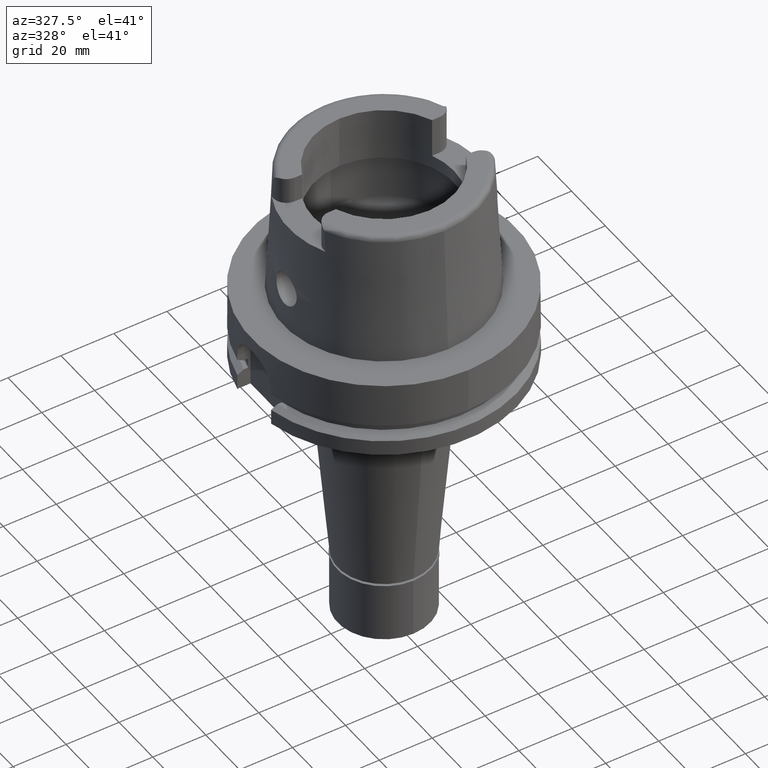
[diagram: clean part render]
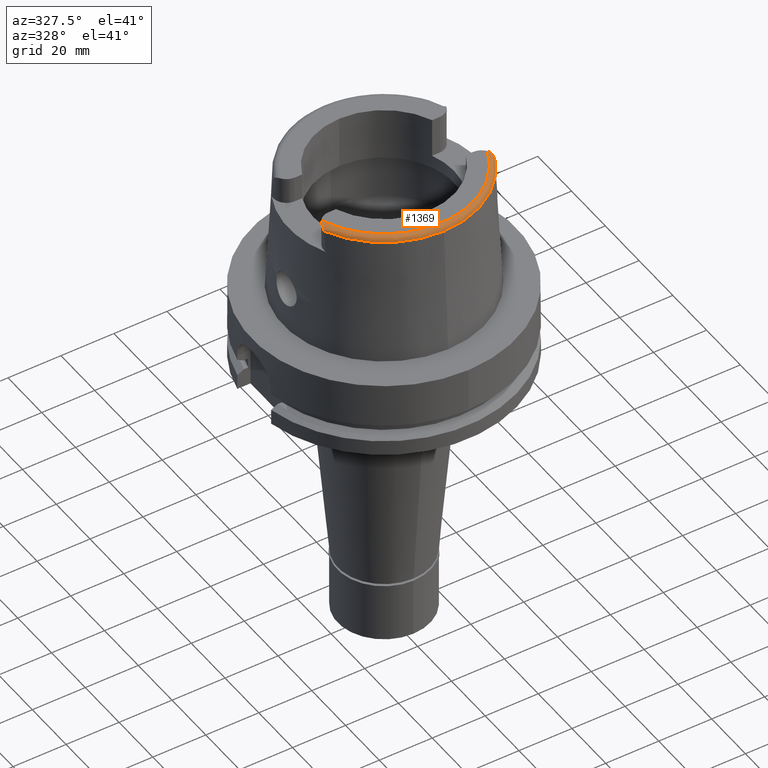
[diagram: same view with one face highlighted and labeled with its STEP entity id]
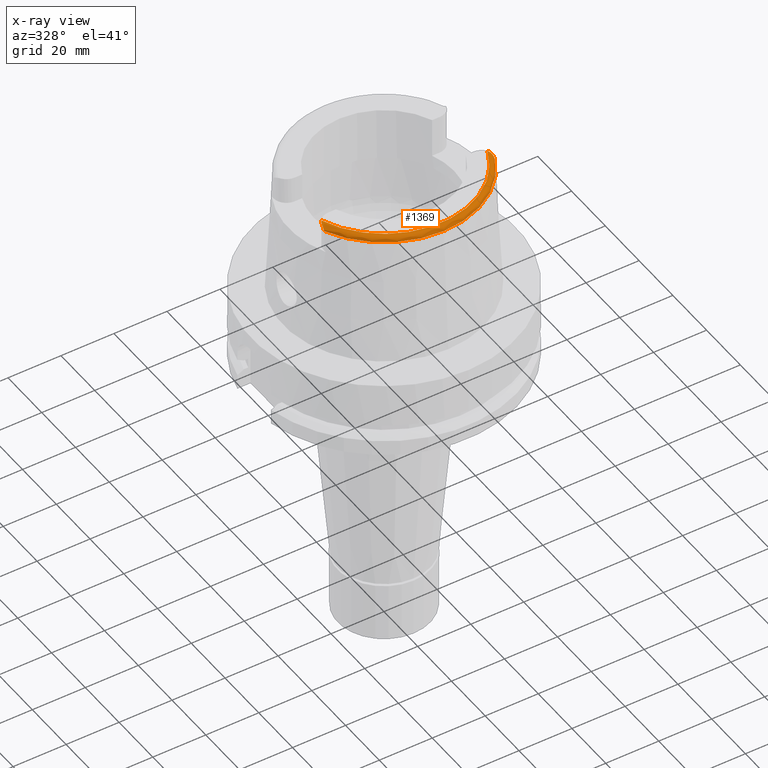
[diagram: x-ray of the same camera — body ghosted, the highlighted face saturated]
A machine part, auxiliary view. The second image highlights one B-rep face of the part: STEP entity #1369.
The next image is the same camera in x-ray: the body ghosted, the highlighted face saturated — about 0% of this face is hidden behind the body in this view.
In plain terms, the highlighted toroidal blend (fillet) surface has major radius 33.5974 mm and minor (blend) radius 2 mm.
Its self-contained STEP definition (entity closure, byte-faithful):
#10 = CARTESIAN_POINT ( 'NONE',  ( 32.16973544114853212, -14.00083717796830207, 49.34181413801352534 ) ) ;
#15 = CARTESIAN_POINT ( 'NONE',  ( -32.25000000000000711, -14.83666364120427694, 48.62478453769007558 ) ) ;
#58 = VERTEX_POINT ( 'NONE', #1162 ) ;
#239 = EDGE_CURVE ( 'NONE', #5182, #1158, #3383, .T. ) ;
#243 = CARTESIAN_POINT ( 'NONE',  ( 31.68115790808501231, -12.58091601286417927, 49.95520566156481834 ) ) ;
#268 = CARTESIAN_POINT ( 'NONE',  ( 31.98608483690798465, -13.30680085940336710, 49.70456204914859200 ) ) ;
#348 = CARTESIAN_POINT ( 'NONE',  ( -32.01566784162267965, -13.39583580472297797, 49.66518408760291692 ) ) ;
#374 = CARTESIAN_POINT ( 'NONE',  ( -32.03284760170905798, -13.44961124604714620, 49.64065071231775761 ) ) ;
#405 = CARTESIAN_POINT ( 'NONE',  ( -32.07039259755143235, -13.57457271587090730, 49.58094718502850640 ) ) ;
#433 = CARTESIAN_POINT ( 'NONE',  ( -32.16832542810696793, -13.99875405973865661, 49.34121622961377085 ) ) ;
#479 = B_SPLINE_CURVE_WITH_KNOTS ( 'NONE', 3,
 ( #4500, #1075, #623, #2346 ),
 .UNSPECIFIED., .F., .F.,
 ( 4, 4 ),
 ( 0.0000000000000000000, 1.000000000000000000 ),
 .UNSPECIFIED. ) ;
#623 = CARTESIAN_POINT ( 'NONE',  ( 32.25000000000000000, -15.04642710755787505, 48.25215143672629381 ) ) ;
#681 = EDGE_CURVE ( 'NONE', #5002, #5137, #479, .T. ) ;
#718 = CARTESIAN_POINT ( 'NONE',  ( 32.14589624978871996, -13.87879782749612723, 49.41602212742060374 ) ) ;
#725 = FACE_OUTER_BOUND ( 'NONE', #5113, .T. ) ;
#820 = CARTESIAN_POINT ( 'NONE',  ( 32.19754232821033213, -14.17400225097228628, 49.22529281623416608 ) ) ;
#826 = CARTESIAN_POINT ( 'NONE',  ( -32.21993092524999724, -14.33955139585496141, 49.10607830487598591 ) ) ;
#1000 = VERTEX_POINT ( 'NONE', #5135 ) ;
#1030 = AXIS2_PLACEMENT_3D ( 'NONE', #4182, #1091, #1488 ) ;
#1075 = CARTESIAN_POINT ( 'NONE',  ( 32.25000000000000000, -14.98829434861787568, 48.40080381515296182 ) ) ;
#1091 = DIRECTION ( 'NONE',  ( 0.0000000000000000000, 0.0000000000000000000, -1.000000000000000000 ) ) ;
#1156 = DIRECTION ( 'NONE',  ( 0.0000000000000000000, 0.0000000000000000000, -1.000000000000000000 ) ) ;
#1158 = VERTEX_POINT ( 'NONE', #1678 ) ;
#1162 = CARTESIAN_POINT ( 'NONE',  ( 31.35385269249000473, -12.07161079256999869, 50.00000000000000000 ) ) ;
#1196 = CARTESIAN_POINT ( 'NONE',  ( -31.52505740257469213, -12.31361226754325955, 49.99999999999998579 ) ) ;
#1242 = CARTESIAN_POINT ( 'NONE',  ( 32.21568334616320328, -14.31163719025748016, 49.12471882297219850 ) ) ;
#1247 = CARTESIAN_POINT ( 'NONE',  ( -32.24473339728576349, -14.66026769318207457, 48.82273060853584212 ) ) ;
#1268 = CARTESIAN_POINT ( 'NONE',  ( 32.24999999999999289, -14.78353746832705085, 48.70325966183432342 ) ) ;
#1274 = CARTESIAN_POINT ( 'NONE',  ( -31.35385269249000473, -12.07161079256999869, 50.00000000000000000 ) ) ;
#1296 = CARTESIAN_POINT ( 'NONE',  ( 32.24707266325546584, -14.63394777628119314, 48.86148399507136020 ) ) ;
#1369 = ADVANCED_FACE ( 'NONE', ( #725 ), #1579, .T. ) ;
#1447 = CARTESIAN_POINT ( 'NONE',  ( -32.25000000000000000, -14.89000000000000057, 48.54599893821999501 ) ) ;
#1456 = ORIENTED_EDGE ( 'NONE', *, *, #2960, .F. ) ;
#1486 = CARTESIAN_POINT ( 'NONE',  ( -32.24999491821000674, -15.06448482180999981, 48.09973250704000236 ) ) ;
#1488 = DIRECTION ( 'NONE',  ( 0.0000000000000000000, -1.000000000000000000, 0.0000000000000000000 ) ) ;
#1515 = CARTESIAN_POINT ( 'NONE',  ( 31.89458010135162880, -13.05860339545219873, 49.80434288758333850 ) ) ;
#1542 = CARTESIAN_POINT ( 'NONE',  ( 32.01646055877388619, -13.39649937367242849, 49.66552767948945046 ) ) ;
#1579 = TOROIDAL_SURFACE ( 'NONE', #1753, 33.59743838135999994, 2.000000000000000000 ) ;
#1601 = DIRECTION ( 'NONE',  ( -0.0004184165975219878483, -0.9999999124637716230, 0.0000000000000000000 ) ) ;
#1619 = CARTESIAN_POINT ( 'NONE',  ( 32.22722436599814699, -14.41846040332962708, 49.04057043078855571 ) ) ;
#1623 = CARTESIAN_POINT ( 'NONE',  ( -32.12998128318812974, -13.81424895806820885, 49.45118095487575971 ) ) ;
#1645 = CARTESIAN_POINT ( 'NONE',  ( -32.25000000000000000, -14.89000000000000057, 48.54599893821999501 ) ) ;
#1678 = CARTESIAN_POINT ( 'NONE',  ( -31.35385269249000473, -12.07161079256999869, 50.00000000000000000 ) ) ;
#1715 = CIRCLE ( 'NONE', #3623, 35.59494289391000166 ) ;
#1753 = AXIS2_PLACEMENT_3D ( 'NONE', #2029, #3755, #1601 ) ;
#1830 = VERTEX_POINT ( 'NONE', #1486 ) ;
#1834 = ORIENTED_EDGE ( 'NONE', *, *, #4596, .F. ) ;
#1842 = CARTESIAN_POINT ( 'NONE',  ( -32.25000000000000000, -14.98833473143944239, 48.40074416381243338 ) ) ;
#1891 = EDGE_CURVE ( 'NONE', #58, #5002, #4759, .T. ) ;
#1996 = CARTESIAN_POINT ( 'NONE',  ( 32.08415713812918568, -13.62767989414509451, 49.55295759063814387 ) ) ;
#2029 = CARTESIAN_POINT ( 'NONE',  ( 0.0000000000000000000, 0.0000000000000000000, 48.00000000000000000 ) ) ;
#2033 = DIRECTION ( 'NONE',  ( 0.9060280460804950309, -0.4232176505245974218, 0.0000000000000000000 ) ) ;
#2129 = DIRECTION ( 'NONE',  ( 0.9332215253017949186, -0.3593015233941980191, 0.0000000000000000000 ) ) ;
#2155 = CARTESIAN_POINT ( 'NONE',  ( 0.0000000000000000000, 0.0000000000000000000, 50.00000000000000000 ) ) ;
#2239 = ORIENTED_EDGE ( 'NONE', *, *, #681, .F. ) ;
#2346 = CARTESIAN_POINT ( 'NONE',  ( 32.25000552016999222, -15.06439827681999866, 48.10004180294000520 ) ) ;
#2356 = AXIS2_PLACEMENT_3D ( 'NONE', #2155, #3887, #2129 ) ;
#2494 = ORIENTED_EDGE ( 'NONE', *, *, #4443, .T. ) ;
#2554 = CARTESIAN_POINT ( 'NONE',  ( -32.20669186167263831, -14.23088236599436129, 49.18704628958384006 ) ) ;
#2588 = CARTESIAN_POINT ( 'NONE',  ( -32.23166741813252401, -14.46663090179804101, 49.00055386322128470 ) ) ;
#2754 = CARTESIAN_POINT ( 'NONE',  ( 32.25000552016999222, -15.06439827681999866, 48.10004180294000520 ) ) ;
#2851 = CIRCLE ( 'NONE', #1030, 35.59494289391000166 ) ;
#2880 = CARTESIAN_POINT ( 'NONE',  ( 32.11134023575498020, -13.73485355347845882, 49.49559911225204445 ) ) ;
#2930 = CARTESIAN_POINT ( 'NONE',  ( -32.12273864565368342, -13.78268907409492705, 49.46904999762931254 ) ) ;
#2956 = CARTESIAN_POINT ( 'NONE',  ( -32.24272264120833142, -14.62016742267234015, 48.86243030582419067 ) ) ;
#2960 = EDGE_CURVE ( 'NONE', #1000, #1830, #2851, .T. ) ;
#2985 = CARTESIAN_POINT ( 'NONE',  ( -32.23705017804141448, -14.53399294807555719, 48.94196780429989246 ) ) ;
#3168 = ORIENTED_EDGE ( 'NONE', *, *, #1891, .F. ) ;
#3179 = CARTESIAN_POINT ( 'NONE',  ( -32.25000000000000000, -14.89000000000000057, 48.54599893821999501 ) ) ;
#3212 = ORIENTED_EDGE ( 'NONE', *, *, #239, .F. ) ;
#3218 = CARTESIAN_POINT ( 'NONE',  ( 31.84733301274679462, -12.94722851228626403, 49.84229474424294892 ) ) ;
#3246 = CARTESIAN_POINT ( 'NONE',  ( 31.96554388061401042, -13.24811469653341156, 49.72936387144443415 ) ) ;
#3277 = CARTESIAN_POINT ( 'NONE',  ( 32.04996694640500721, -13.50369361141459024, 49.61585731392293752 ) ) ;
#3332 = CARTESIAN_POINT ( 'NONE',  ( 31.52519067924490415, -12.31380065693250359, 50.00000000000000711 ) ) ;
#3353 = CARTESIAN_POINT ( 'NONE',  ( 32.20548420144861268, -14.23007950369171759, 49.18558415269623652 ) ) ;
#3383 = B_SPLINE_CURVE_WITH_KNOTS ( 'NONE', 3,
 ( #1645, #15, #3462, #1247, #2956, #3832, #2985, #3861, #2588, #826, #2554, #4734, #433, #4284, #5189, #1623, #2930, #3889, #4626, #405, #374, #348, #5529, #5506, #3781, #5159, #5555, #1196, #1274 ),
 .UNSPECIFIED., .F., .F.,
 ( 4, 2, 2, 2, 2, 2, 2, 1, 2, 2, 1, 1, 2, 2, 2, 4 ),
 ( 0.0000000000000000000, 0.1250000000000079659, 0.1875000000000148492, 0.2187500000000177636, 0.2500000000000207057, 0.3750000000000299205, 0.4375000000000334177, 0.4687500000000343059, 0.4843750000000347500, 0.5000000000000351941, 0.5625000000000367484, 0.5937500000000363043, 0.6093750000000349720, 0.6250000000000336398, 0.7500000000000220934, 1.000000000000000000 ),
 .UNSPECIFIED. ) ;
#3429 = CARTESIAN_POINT ( 'NONE',  ( 32.21879730786056939, -14.33839695425322880, 49.10421332399464944 ) ) ;
#3462 = CARTESIAN_POINT ( 'NONE',  ( -32.24916105310609993, -14.77253542027677291, 48.70381565520280276 ) ) ;
#3623 = AXIS2_PLACEMENT_3D ( 'NONE', #5012, #1156, #2033 ) ;
#3696 = CARTESIAN_POINT ( 'NONE',  ( 31.97902540861255360, -13.28634926148108519, 49.71331443467204281 ) ) ;
#3755 = DIRECTION ( 'NONE',  ( 0.0000000000000000000, 0.0000000000000000000, 1.000000000000000000 ) ) ;
#3776 = CARTESIAN_POINT ( 'NONE',  ( 32.25000000000000000, -14.89000000000000057, 48.54599893821999501 ) ) ;
#3781 = CARTESIAN_POINT ( 'NONE',  ( -31.93978611614276630, -13.17016595265481094, 49.76398645156413636 ) ) ;
#3832 = CARTESIAN_POINT ( 'NONE',  ( -32.23860614430194005, -14.55603428147738754, 48.92207192102272728 ) ) ;
#3861 = CARTESIAN_POINT ( 'NONE',  ( -32.23351614273384058, -14.48859099915391724, 48.98179026060955010 ) ) ;
#3887 = DIRECTION ( 'NONE',  ( 0.0000000000000000000, 0.0000000000000000000, -1.000000000000000000 ) ) ;
#3889 = CARTESIAN_POINT ( 'NONE',  ( -32.11939246537817638, -13.76839544929866399, 49.47705722755927127 ) ) ;
#4122 = CARTESIAN_POINT ( 'NONE',  ( 31.35385269249000473, -12.07161079256999869, 50.00000000000000000 ) ) ;
#4182 = CARTESIAN_POINT ( 'NONE',  ( 0.0000000000000000000, 0.0000000000000000000, 48.09987853799000135 ) ) ;
#4282 = B_SPLINE_CURVE_WITH_KNOTS ( 'NONE', 3,
 ( #5331, #4790, #1842, #3179 ),
 .UNSPECIFIED., .F., .F.,
 ( 4, 4 ),
 ( 0.0000000000000000000, 1.000000000000000000 ),
 .UNSPECIFIED. ) ;
#4284 = CARTESIAN_POINT ( 'NONE',  ( -32.15017614216606034, -13.90751457523325740, 49.39676486522082399 ) ) ;
#4317 = EDGE_CURVE ( 'NONE', #5137, #1000, #1715, .T. ) ;
#4443 = EDGE_CURVE ( 'NONE', #58, #1158, #4702, .T. ) ;
#4500 = CARTESIAN_POINT ( 'NONE',  ( 32.25000000000000000, -14.89000000000000057, 48.54599893821999501 ) ) ;
#4596 = EDGE_CURVE ( 'NONE', #1830, #5182, #4282, .T. ) ;
#4626 = CARTESIAN_POINT ( 'NONE',  ( -32.09833310150607133, -13.68067166794114975, 49.52555733028275142 ) ) ;
#4702 = CIRCLE ( 'NONE', #2356, 33.59743838135999994 ) ;
#4734 = CARTESIAN_POINT ( 'NONE',  ( -32.17890937815720775, -14.05801643782550236, 49.30332091372176251 ) ) ;
#4759 = B_SPLINE_CURVE_WITH_KNOTS ( 'NONE', 3,
 ( #4122, #3332, #243, #3218, #1515, #4976, #3246, #3696, #268, #1542, #3277, #1996, #5005, #5448, #2880, #718, #10, #820, #3353, #1242, #3429, #5079, #1619, #1296, #1268, #5123 ),
 .UNSPECIFIED., .F., .F.,
 ( 4, 2, 1, 1, 2, 2, 1, 1, 2, 2, 2, 2, 2, 2, 4 ),
 ( 0.0000000000000000000, 0.2500000000000245914, 0.3125000000000313638, 0.3437500000000338618, 0.3593750000000334177, 0.3750000000000329181, 0.4375000000000286993, 0.4687500000000267009, 0.4843750000000274225, 0.5000000000000281997, 0.6250000000000275335, 0.6875000000000277556, 0.7187500000000263123, 0.7500000000000247580, 1.000000000000000000 ),
 .UNSPECIFIED. ) ;
#4790 = CARTESIAN_POINT ( 'NONE',  ( -32.25000000000000000, -15.04649633870944214, 48.25198868675242636 ) ) ;
#4793 = ORIENTED_EDGE ( 'NONE', *, *, #4317, .F. ) ;
#4976 = CARTESIAN_POINT ( 'NONE',  ( 31.94497555618124096, -13.19092092821708562, 49.75292820392017035 ) ) ;
#5002 = VERTEX_POINT ( 'NONE', #3776 ) ;
#5005 = CARTESIAN_POINT ( 'NONE',  ( 32.09778792415826132, -13.68055773705854250, 49.52493964563241491 ) ) ;
#5012 = CARTESIAN_POINT ( 'NONE',  ( 0.0000000000000000000, 0.0000000000000000000, 48.09987853799000135 ) ) ;
#5079 = CARTESIAN_POINT ( 'NONE',  ( 32.22449809470619897, -14.39105160458542976, 49.06276821456714998 ) ) ;
#5113 = EDGE_LOOP ( 'NONE', ( #1456, #4793, #2239, #3168, #2494, #3212, #1834 ) ) ;
#5123 = CARTESIAN_POINT ( 'NONE',  ( 32.25000000000000000, -14.89000000000000057, 48.54599893821999501 ) ) ;
#5135 = CARTESIAN_POINT ( 'NONE',  ( 1.065814103639999922E-14, -35.59494289391000166, 48.09987853799000135 ) ) ;
#5137 = VERTEX_POINT ( 'NONE', #2754 ) ;
#5159 = CARTESIAN_POINT ( 'NONE',  ( -31.88010272184707006, -13.01941478284857645, 49.82008690588731525 ) ) ;
#5182 = VERTEX_POINT ( 'NONE', #1447 ) ;
#5189 = CARTESIAN_POINT ( 'NONE',  ( -32.14053296851734132, -13.86130874006674496, 49.42421559846660273 ) ) ;
#5331 = CARTESIAN_POINT ( 'NONE',  ( -32.24999491821000674, -15.06448482180999981, 48.09973250704000236 ) ) ;
#5448 = CARTESIAN_POINT ( 'NONE',  ( 32.10665109209416102, -13.71574888760160427, 49.50602525546396748 ) ) ;
#5506 = CARTESIAN_POINT ( 'NONE',  ( -31.99841625382265065, -13.34320490052762054, 49.68871173567664101 ) ) ;
#5529 = CARTESIAN_POINT ( 'NONE',  ( -32.00396948975434697, -13.35994016288231379, 49.68130548208285546 ) ) ;
#5555 = CARTESIAN_POINT ( 'NONE',  ( -31.68129990105690652, -12.58133033369902698, 49.95502172647183414 ) ) ;